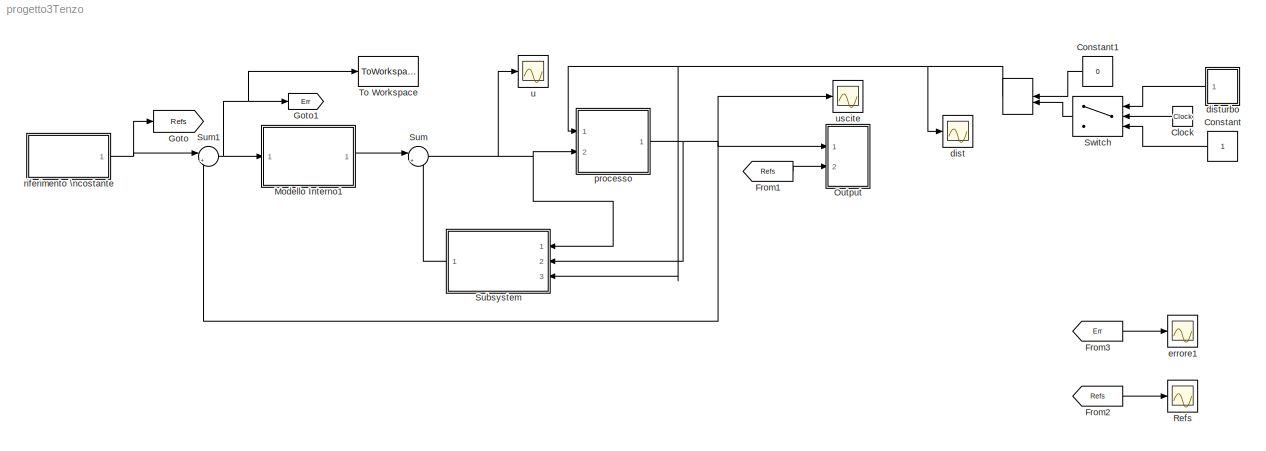
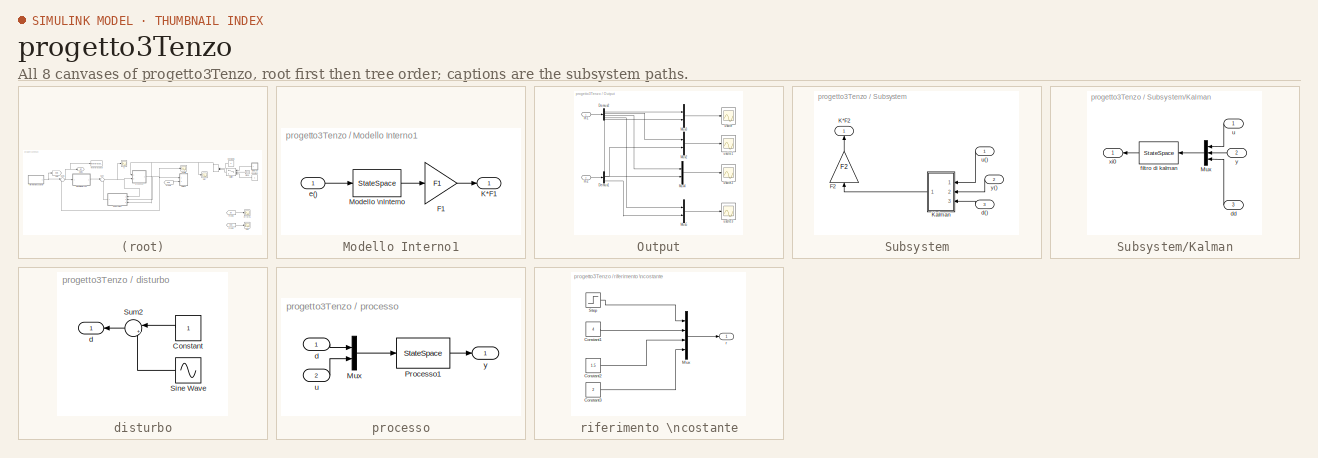
[diagram: thumbnail index - all 8 canvases of the model, root first then tree order]
MODEL progetto3Tenzo
KIND model
BLOCK [ManualSwitch]  
  CurrentSetting = 0
  SID = 124
BLOCK [Clock] Clock
  SID = 104
BLOCK [Constant] Constant
  SID = 106
BLOCK [Constant] Constant1
  SID = 126
  Value = 0
BLOCK [From] From1
  GotoTag = Refs
  SID = 69
BLOCK [From] From2
  GotoTag = Refs
  SID = 84
BLOCK [From] From3
  GotoTag = Err
  SID = 85
BLOCK [Goto] Goto
  GotoTag = Refs
  SID = 68
BLOCK [Goto] Goto1
  GotoTag = Err
  SID = 87
BLOCK [SubSystem] Modello Interno1
  Ports = [1, 1]
  RequestExecContextInheritance = off
  SID = 133
  Variant = off
BLOCK [Gain] Modello Interno1/F1
  Gain = F1
  Multiplication = Matrix(K*u) (u vector)
  OutDataTypeStr = Inherit: Inherit via internal rule
  ParamDataTypeStr = Inherit: Inherit via internal rule
  SID = 135
  SaturateOnIntegerOverflow = off
BLOCK [Outport] Modello Interno1/K*F1
  IconDisplay = Port number
  SID = 137
BLOCK [StateSpace] Modello Interno1/Modello \nInterno
  A = AMI
  B = BMI
  C = CMI
  D = DMI
  Ports = [1, 1]
  SID = 136
  X0 = 0
BLOCK [Inport] Modello Interno1/e()
  IconDisplay = Port number
  SID = 134
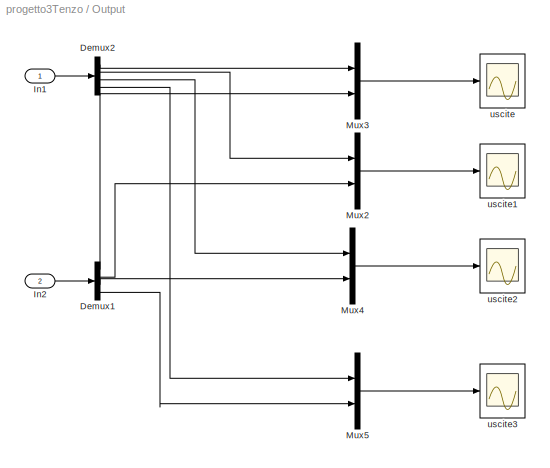
BLOCK [SubSystem] Output
  Ports = [2]
  RequestExecContextInheritance = off
  SID = 71
  Variant = off
BLOCK [Demux] Output/Demux1
  DisplayOption = bar
  Ports = [1, 4]
  SID = 74
BLOCK [Demux] Output/Demux2
  DisplayOption = bar
  Ports = [1, 4]
  SID = 76
BLOCK [Inport] Output/In1
  IconDisplay = Port number
  SID = 72
BLOCK [Inport] Output/In2
  IconDisplay = Port number
  Port = 2
  SID = 73
BLOCK [Mux] Output/Mux2
  DisplayOption = bar
  Inputs = 2
  Ports = [2, 1]
  SID = 77
BLOCK [Mux] Output/Mux3
  DisplayOption = bar
  Inputs = 2
  Ports = [2, 1]
  SID = 64
BLOCK [Mux] Output/Mux4
  DisplayOption = bar
  Inputs = 2
  Ports = [2, 1]
  SID = 79
BLOCK [Mux] Output/Mux5
  DisplayOption = bar
  Inputs = 2
  Ports = [2, 1]
  SID = 81
BLOCK [Scope] Output/uscite
  Ports = [1]
  SID = 25
  ScopeSpecificationString = Simulink.scopes.TimeScopeBlockCfg('CurrentConfiguration', extmgr.ConfigurationSet(extmgr.Configuration('Core','General UI',true),extmgr.Configuration('Core','Source UI',true),extmgr.Configuration('Sources','WiredSimulink',true,'DataLoggingSaveFormat','StructureWithTime','DataLoggingDecimation','1','DataLoggingDecimateData',true),extmgr.Configuration('Visuals','Time Domain',true,'TimeAxisLabels','A...<+1661ch>
BLOCK [Scope] Output/uscite1
  Ports = [1]
  SID = 78
  ScopeSpecificationString = Simulink.scopes.TimeScopeBlockCfg('CurrentConfiguration', extmgr.ConfigurationSet(extmgr.Configuration('Core','General UI',true),extmgr.Configuration('Core','Source UI',true),extmgr.Configuration('Sources','WiredSimulink',true,'DataLoggingVariableName','ScopeData4','DataLoggingSaveFormat','StructureWithTime','DataLoggingDecimation','1','DataLoggingDecimateData',true),extmgr.Configuration('Visuals'...<+1744ch>
BLOCK [Scope] Output/uscite2
  Ports = [1]
  SID = 80
  ScopeSpecificationString = Simulink.scopes.TimeScopeBlockCfg('CurrentConfiguration', extmgr.ConfigurationSet(extmgr.Configuration('Core','General UI',true),extmgr.Configuration('Core','Source UI',true),extmgr.Configuration('Sources','WiredSimulink',true,'DataLoggingVariableName','ScopeData6','DataLoggingSaveFormat','StructureWithTime','DataLoggingDecimation','1','DataLoggingDecimateData',true),extmgr.Configuration('Visuals'...<+1699ch>
BLOCK [Scope] Output/uscite3
  Ports = [1]
  SID = 82
  ScopeSpecificationString = Simulink.scopes.TimeScopeBlockCfg('CurrentConfiguration', extmgr.ConfigurationSet(extmgr.Configuration('Core','General UI',true),extmgr.Configuration('Core','Source UI',true),extmgr.Configuration('Sources','WiredSimulink',true,'DataLoggingVariableName','ScopeData7','DataLoggingSaveFormat','StructureWithTime','DataLoggingDecimation','1','DataLoggingDecimateData',true),extmgr.Configuration('Visuals'...<+1701ch>
BLOCK [Scope] Refs
  Ports = [1]
  SID = 83
  ScopeSpecificationString = C++SS(StrPVP('Location','[54, 91, 1074, 627]'),StrPVP('Open','off'),MxPVP('AxesTitles',24,'struct(''axes1'',''%<SignalLabel>'')'),MxPVP('ScopeGraphics',28,'struct(''FigureColor'',''[0.5 0.5 0.5]'',''AxesColor'',''[0 0 0]'',''AxesTickColor'',''[1 1 1]'',''LineColors'',''[1 1 0;1 0 1;0 1 1;1 0 0;0 1 0;0 0 1]'',''LineStyles'',''-|-|-|-|-|-'',''LineWidths'',''[0.5 0.5 0.5 0.5 0.5 0.5]'',''MarkerStyles...<+271ch>
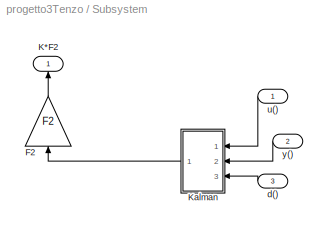
BLOCK [SubSystem] Subsystem
  Ports = [3, 1]
  RequestExecContextInheritance = off
  SID = 111
  Variant = off
BLOCK [Gain] Subsystem/F2
  Gain = F2
  Multiplication = Matrix(K*u) (u vector)
  OutDataTypeStr = Inherit: Inherit via internal rule
  ParamDataTypeStr = Inherit: Inherit via internal rule
  SID = 17
  SaturateOnIntegerOverflow = off
BLOCK [Outport] Subsystem/K*F2
  IconDisplay = Port number
  SID = 112
BLOCK [SubSystem] Subsystem/Kalman
  Ports = [3, 1]
  RequestExecContextInheritance = off
  SID = 4
  Variant = off
BLOCK [Mux] Subsystem/Kalman/Mux
  DisplayOption = bar
  Inputs = [4 4 1]
  Ports = [3, 1]
  SID = 1
BLOCK [Inport] Subsystem/Kalman/dd
  IconDisplay = Port number
  Port = 3
  SID = 55
BLOCK [StateSpace] Subsystem/Kalman/filtro di kalman
  A = Aoss
  B = Boss
  C = Coss
  D = Doss
  Ports = [1, 1]
  SID = 3
  X0 = 0
BLOCK [Inport] Subsystem/Kalman/u
  IconDisplay = Port number
  SID = 5
BLOCK [Outport] Subsystem/Kalman/xi0
  IconDisplay = Port number
  SID = 6
BLOCK [Inport] Subsystem/Kalman/y
  IconDisplay = Port number
  Port = 2
  SID = 7
BLOCK [Inport] Subsystem/d()
  IconDisplay = Port number
  Port = 3
  SID = 115
BLOCK [Inport] Subsystem/u()
  IconDisplay = Port number
  SID = 113
BLOCK [Inport] Subsystem/y()
  IconDisplay = Port number
  Port = 2
  SID = 114
BLOCK [Sum] Sum
  IconShape = round
  InputSameDT = off
  Inputs = |++
  OutDataTypeStr = Inherit: Inherit via internal rule
  Ports = [2, 1]
  SID = 23
  SaturateOnIntegerOverflow = off
BLOCK [Sum] Sum1
  IconShape = round
  InputSameDT = off
  Inputs = |+-
  OutDataTypeStr = Inherit: Inherit via internal rule
  Ports = [2, 1]
  SID = 24
  SaturateOnIntegerOverflow = off
BLOCK [Switch] Switch
  InputSameDT = off
  SID = 103
  SaturateOnIntegerOverflow = off
BLOCK [ToWorkspace] To Workspace
  MaxDataPoints = inf
  Ports = [1]
  SID = 59
  SampleTime = -1
  SaveFormat = Structure
  VariableName = simout
BLOCK [Scope] dist
  Ports = [1]
  SID = 54
  ScopeSpecificationString = Simulink.scopes.TimeScopeBlockCfg('CurrentConfiguration', extmgr.ConfigurationSet(extmgr.Configuration('Core','General UI',true),extmgr.Configuration('Core','Source UI',true),extmgr.Configuration('Sources','WiredSimulink',true,'DataLoggingVariableName','ScopeData5','DataLoggingSaveFormat','StructureWithTime','DataLoggingDecimation','1','DataLoggingDecimateData',true),extmgr.Configuration('Visuals'...<+1640ch>
BLOCK [SubSystem] disturbo
  Ports = [0, 1]
  RequestExecContextInheritance = off
  SID = 50
  Variant = off
BLOCK [Constant] disturbo/Constant
  SID = 47
BLOCK [Sin] disturbo/Sine Wave
  Amplitude = 3
  Frequency = omega
  Ports = [0, 1]
  SID = 48
  SampleTime = 0
BLOCK [Sum] disturbo/Sum2
  IconShape = round
  InputSameDT = off
  Inputs = |++
  OutDataTypeStr = Inherit: Inherit via internal rule
  Ports = [2, 1]
  SID = 49
  SaturateOnIntegerOverflow = off
BLOCK [Outport] disturbo/d
  IconDisplay = Port number
  SID = 51
BLOCK [Scope] errore1
  Ports = [1]
  SID = 86
  ScopeSpecificationString = Simulink.scopes.TimeScopeBlockCfg('CurrentConfiguration', extmgr.ConfigurationSet(extmgr.Configuration('Core','General UI',true),extmgr.Configuration('Core','Source UI',true),extmgr.Configuration('Sources','WiredSimulink',true,'DataLoggingVariableName','ScopeData8','DataLoggingSaveFormat','StructureWithTime','DataLoggingDecimation','1','DataLoggingDecimateData',true),extmgr.Configuration('Visuals'...<+1670ch>
BLOCK [SubSystem] processo
  Ports = [2, 1]
  RequestExecContextInheritance = off
  SID = 43
  Variant = off
BLOCK [Mux] processo/Mux
  DisplayOption = bar
  Inputs = [1 4]
  Ports = [2, 1]
  SID = 41
BLOCK [StateSpace] processo/Processo1
  A = AMin
  B = Bmod
  C = ClocalMin
  D = Dmod
  Ports = [1, 1]
  SID = 42
  X0 = 0
BLOCK [Inport] processo/d
  IconDisplay = Port number
  SID = 44
BLOCK [Inport] processo/u
  IconDisplay = Port number
  Port = 2
  SID = 46
BLOCK [Outport] processo/y
  IconDisplay = Port number
  SID = 45
BLOCK [SubSystem] riferimento \ncostante
  Ports = [0, 1]
  RequestExecContextInheritance = off
  SID = 11
  Variant = off
BLOCK [Constant] riferimento \ncostante/Constant1
  SID = 9
  Value = 4
BLOCK [Constant] riferimento \ncostante/Constant2
  SID = 60
  Value = 1.5
BLOCK [Constant] riferimento \ncostante/Constant3
  SID = 61
  Value = 2
BLOCK [Mux] riferimento \ncostante/Mux
  DisplayOption = bar
  Inputs = [1 1 1 1]
  Ports = [4, 1]
  SID = 10
BLOCK [Step] riferimento \ncostante/Step
  After = 2.5
  SID = 39
  SampleTime = 0
  Time = 3
BLOCK [Outport] riferimento \ncostante/r
  IconDisplay = Port number
  SID = 12
BLOCK [Scope] u
  Ports = [1]
  SID = 28
  ScopeSpecificationString = Simulink.scopes.TimeScopeBlockCfg('CurrentConfiguration', extmgr.ConfigurationSet(extmgr.Configuration('Core','General UI',true),extmgr.Configuration('Core','Source UI',true),extmgr.Configuration('Sources','WiredSimulink',true,'DataLoggingVariableName','ScopeData3','DataLoggingSaveFormat','StructureWithTime','DataLoggingDecimation','1','DataLoggingDecimateData',true),extmgr.Configuration('Visuals'...<+1674ch>
BLOCK [Scope] uscite
  Ports = [1]
  SID = 88
  ScopeSpecificationString = Simulink.scopes.TimeScopeBlockCfg('CurrentConfiguration', extmgr.ConfigurationSet(extmgr.Configuration('Core','General UI',true),extmgr.Configuration('Core','Source UI',true),extmgr.Configuration('Sources','WiredSimulink',true,'DataLoggingVariableName','ScopeData2','DataLoggingSaveFormat','StructureWithTime','DataLoggingDecimation','1','DataLoggingDecimateData',true),extmgr.Configuration('Visuals'...<+1688ch>
NET  :1 -> Subsystem:3, dist:1, processo:1
LINE Clock:1 -> Switch:2
LINE Constant1:1 ->  :1
LINE Constant:1 -> Switch:3
LINE From1:1 -> Output:2
LINE From2:1 -> Refs:1
LINE From3:1 -> errore1:1
LINE Modello Interno1/F1:1 -> Modello Interno1/K*F1:1
LINE Modello Interno1/Modello \nInterno:1 -> Modello Interno1/F1:1
LINE Modello Interno1/e():1 -> Modello Interno1/Modello \nInterno:1
LINE Modello Interno1:1 -> Sum:1
LINE Output/Demux1:1 -> Output/Mux3:2
LINE Output/Demux1:2 -> Output/Mux2:2
LINE Output/Demux1:3 -> Output/Mux4:2
LINE Output/Demux1:4 -> Output/Mux5:2
LINE Output/Demux2:1 -> Output/Mux3:1
LINE Output/Demux2:2 -> Output/Mux2:1
LINE Output/Demux2:3 -> Output/Mux4:1
LINE Output/Demux2:4 -> Output/Mux5:1
LINE Output/In1:1 -> Output/Demux2:1
LINE Output/In2:1 -> Output/Demux1:1
LINE Output/Mux2:1 -> Output/uscite1:1
LINE Output/Mux3:1 -> Output/uscite:1
LINE Output/Mux4:1 -> Output/uscite2:1
LINE Output/Mux5:1 -> Output/uscite3:1
LINE Subsystem/F2:1 -> Subsystem/K*F2:1
LINE Subsystem/Kalman/Mux:1 -> Subsystem/Kalman/filtro di kalman:1
LINE Subsystem/Kalman/dd:1 -> Subsystem/Kalman/Mux:3
LINE Subsystem/Kalman/filtro di kalman:1 -> Subsystem/Kalman/xi0:1
LINE Subsystem/Kalman/u:1 -> Subsystem/Kalman/Mux:1
LINE Subsystem/Kalman/y:1 -> Subsystem/Kalman/Mux:2
LINE Subsystem/Kalman:1 -> Subsystem/F2:1
LINE Subsystem/d():1 -> Subsystem/Kalman:3
LINE Subsystem/u():1 -> Subsystem/Kalman:1
LINE Subsystem/y():1 -> Subsystem/Kalman:2
LINE Subsystem:1 -> Sum:2
NET Sum1:1 -> Goto1:1, Modello Interno1:1, To Workspace:1
NET Sum:1 -> Subsystem:1, processo:2, u:1
LINE Switch:1 ->  :2
LINE disturbo/Constant:1 -> disturbo/Sum2:1
LINE disturbo/Sine Wave:1 -> disturbo/Sum2:2
LINE disturbo/Sum2:1 -> disturbo/d:1
LINE disturbo:1 -> Switch:1
LINE processo/Mux:1 -> processo/Processo1:1
LINE processo/Processo1:1 -> processo/y:1
LINE processo/d:1 -> processo/Mux:1
LINE processo/u:1 -> processo/Mux:2
NET processo:1 -> Output:1, Subsystem:2, Sum1:2, uscite:1
LINE riferimento \ncostante/Constant1:1 -> riferimento \ncostante/Mux:2
LINE riferimento \ncostante/Constant2:1 -> riferimento \ncostante/Mux:3
LINE riferimento \ncostante/Constant3:1 -> riferimento \ncostante/Mux:4
LINE riferimento \ncostante/Mux:1 -> riferimento \ncostante/r:1
LINE riferimento \ncostante/Step:1 -> riferimento \ncostante/Mux:1
NET riferimento \ncostante:1 -> Goto:1, Sum1:1
note: NET lines group one-source signal fan-out (src -> all destinations, sorted); 1:1 wires keep LINE
